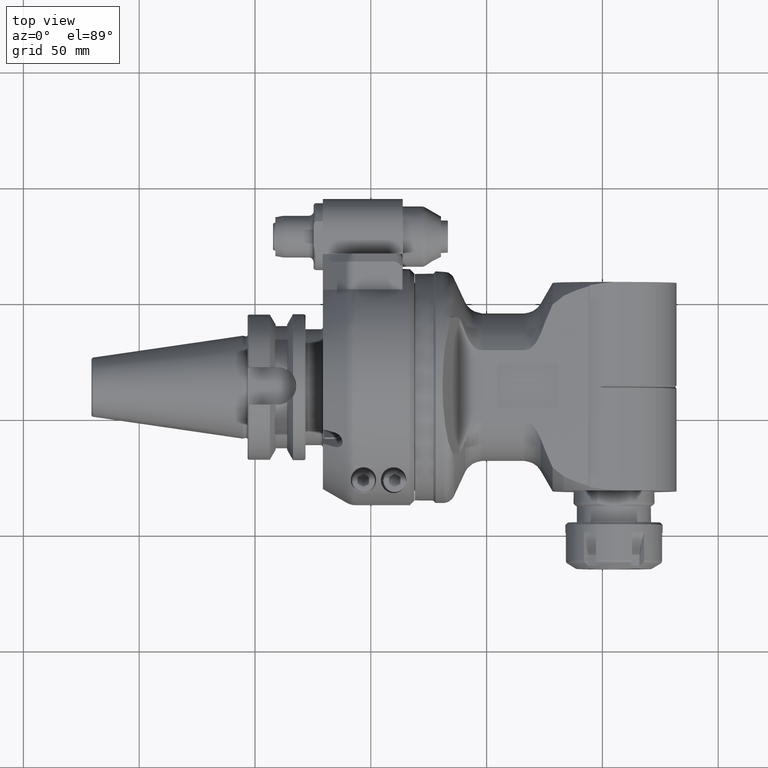
[diagram: clean part render]
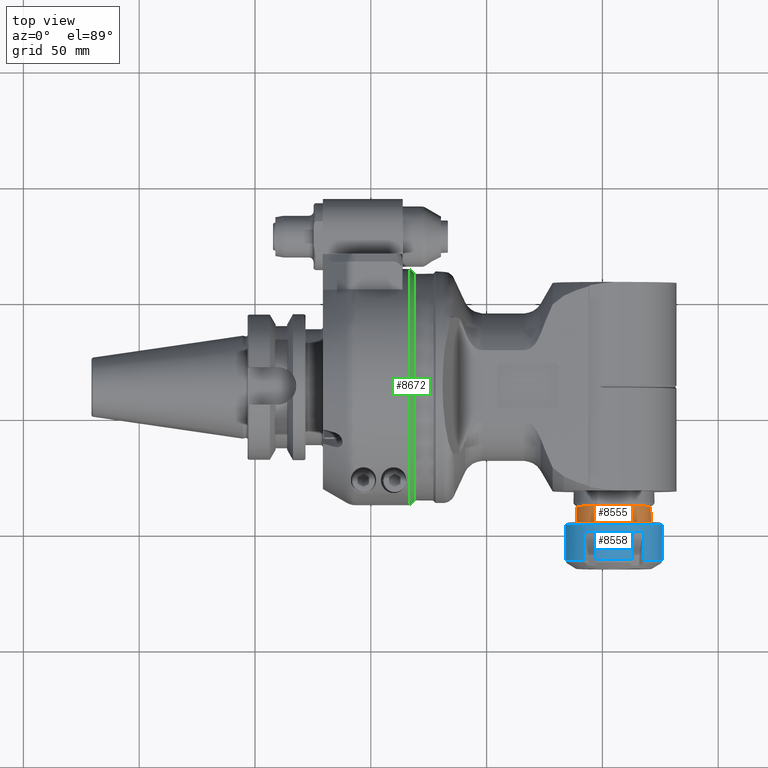
[diagram: same view with three faces highlighted in distinct colors, each labeled with its STEP entity id]
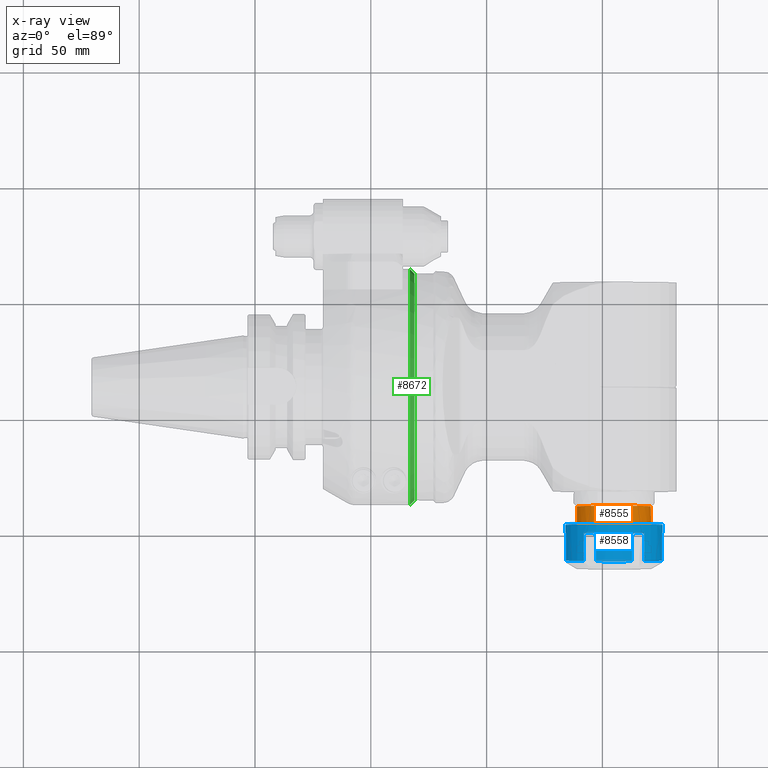
[diagram: x-ray of the same camera — body ghosted, the three highlighted faces saturated]
A machine part, top view with three faces highlighted in distinct colors.
The next image is the same camera in x-ray (body ghosted, the three faces saturated) — at least one of them is partly hidden behind the body in this view.
Their STEP definitions:

[orange] entity #8555 — the highlighted cylindrical surface (bore or boss wall) has radius 16 mm, axis along (-0, 1, 0).
#622=CYLINDRICAL_SURFACE('',#9247,16.);
#822=CIRCLE('',#9239,16.);
#823=CIRCLE('',#9240,16.);
#825=CIRCLE('',#9246,16.);
#826=CIRCLE('',#9248,16.);
#1239=FACE_OUTER_BOUND('',#1780,.T.);
#1780=EDGE_LOOP('',(#6067,#6068,#6069,#6070,#6071,#6072));
#2356=LINE('',#13516,#2917);
#2917=VECTOR('',#10480,16.);
#3574=VERTEX_POINT('',#13448);
#3577=VERTEX_POINT('',#13484);
#3578=VERTEX_POINT('',#13486);
#3580=VERTEX_POINT('',#13515);
#4519=EDGE_CURVE('',#3574,#3577,#822,.T.);
#4520=EDGE_CURVE('',#3577,#3578,#823,.T.);
#4526=EDGE_CURVE('',#3578,#3574,#825,.T.);
#4527=EDGE_CURVE('',#3577,#3580,#2356,.T.);
#4528=EDGE_CURVE('',#3580,#3580,#826,.T.);
#6067=ORIENTED_EDGE('',*,*,#4519,.F.);
#6068=ORIENTED_EDGE('',*,*,#4526,.F.);
#6069=ORIENTED_EDGE('',*,*,#4520,.F.);
#6070=ORIENTED_EDGE('',*,*,#4527,.T.);
#6071=ORIENTED_EDGE('',*,*,#4528,.F.);
#6072=ORIENTED_EDGE('',*,*,#4527,.F.);
#8555=ADVANCED_FACE('',(#1239),#622,.T.);
#9239=AXIS2_PLACEMENT_3D('',#13485,#10461,#10462);
#9240=AXIS2_PLACEMENT_3D('',#13487,#10463,#10464);
#9246=AXIS2_PLACEMENT_3D('',#13513,#10476,#10477);
#9247=AXIS2_PLACEMENT_3D('',#13514,#10478,#10479);
#9248=AXIS2_PLACEMENT_3D('',#13517,#10481,#10482);
#10461=DIRECTION('center_axis',(0.,1.,0.));
#10462=DIRECTION('ref_axis',(-1.,0.,0.));
#10463=DIRECTION('center_axis',(0.,1.,0.));
#10464=DIRECTION('ref_axis',(-1.,0.,0.));
#10476=DIRECTION('center_axis',(0.,1.,0.));
#10477=DIRECTION('ref_axis',(1.,0.,0.));
#10478=DIRECTION('center_axis',(0.,1.,0.));
#10479=DIRECTION('ref_axis',(1.,0.,0.));
#10480=DIRECTION('',(0.,-1.,0.));
#10481=DIRECTION('center_axis',(0.,-1.,0.));
#10482=DIRECTION('ref_axis',(0.,0.,1.));
#13448=CARTESIAN_POINT('',(90.,-51.50000028753,-16.));
#13484=CARTESIAN_POINT('',(74.,-51.50000028753,1.95943487863577E-15));
#13485=CARTESIAN_POINT('Origin',(90.,-51.50000028753,0.));
#13486=CARTESIAN_POINT('',(90.,-51.50000028753,16.));
#13487=CARTESIAN_POINT('Origin',(90.,-51.50000028753,0.));
#13513=CARTESIAN_POINT('Origin',(90.,-51.50000028753,0.));
#13514=CARTESIAN_POINT('Origin',(90.,-65.71442900196,0.));
#13515=CARTESIAN_POINT('',(74.,-58.50000042753,1.95943487863577E-15));
#13516=CARTESIAN_POINT('',(74.,-65.71442900196,1.95943487863577E-15));
#13517=CARTESIAN_POINT('Origin',(90.,-58.50000042753,0.));

[blue] entity #8558 — the highlighted cylindrical surface (bore or boss wall) has radius 21 mm, axis along (0, -1, -0).
#500=B_SPLINE_CURVE_WITH_KNOTS('',3,(#13528,#13529,#13530,#13531,#13532,
#13533,#13534,#13535,#13536,#13537),.UNSPECIFIED.,.F.,.F.,(4,2,2,2,4),(2.87463116985816,
2.88765206159068,3.16316369067813,3.43867531976559,3.45169621149591),
 .UNSPECIFIED.);
#501=B_SPLINE_CURVE_WITH_KNOTS('',3,(#13545,#13546,#13547,#13548,#13549,
#13550,#13551,#13552,#13553,#13554),.UNSPECIFIED.,.F.,.F.,(4,2,2,2,4),(2.87463116985781,
2.8876520615906,3.16316369067809,3.43867531976558,3.45169621149847),
 .UNSPECIFIED.);
#502=B_SPLINE_CURVE_WITH_KNOTS('',3,(#13562,#13563,#13564,#13565,#13566,
#13567,#13568,#13569,#13570,#13571),.UNSPECIFIED.,.F.,.F.,(4,2,2,2,4),(2.874631169857,
2.88765206159059,3.16316369067809,3.43867531976558,3.45169621149836),
 .UNSPECIFIED.);
#503=B_SPLINE_CURVE_WITH_KNOTS('',3,(#13579,#13580,#13581,#13582,#13583,
#13584),.UNSPECIFIED.,.F.,.F.,(4,2,4),(-3.45169621149824,-3.43867531976559,
-3.16316369067814),.UNSPECIFIED.);
#504=B_SPLINE_CURVE_WITH_KNOTS('',3,(#13587,#13588,#13589,#13590,#13591,
#13592),.UNSPECIFIED.,.F.,.F.,(4,2,4),(-3.16316369067814,-2.88765206159068,
-2.87463116985803),.UNSPECIFIED.);
#505=B_SPLINE_CURVE_WITH_KNOTS('',3,(#13600,#13601,#13602,#13603,#13604,
#13605,#13606,#13607,#13608,#13609),.UNSPECIFIED.,.F.,.F.,(4,2,2,2,4),(2.87463116985782,
2.8876520615906,3.16316369067809,3.43867531976558,3.45169621149917),
 .UNSPECIFIED.);
#506=B_SPLINE_CURVE_WITH_KNOTS('',3,(#13617,#13618,#13619,#13620,#13621,
#13622,#13623,#13624,#13625,#13626),.UNSPECIFIED.,.F.,.F.,(4,2,2,2,4),(-3.45169621149573,
-3.43867531976558,-3.16316369067809,-2.8876520615906,-2.87463116985796),
 .UNSPECIFIED.);
#623=CYLINDRICAL_SURFACE('',#9253,21.);
#828=CIRCLE('',#9252,21.);
#829=CIRCLE('',#9254,21.);
#830=CIRCLE('',#9255,21.);
#831=CIRCLE('',#9256,21.);
#832=CIRCLE('',#9257,21.);
#833=CIRCLE('',#9258,21.);
#834=CIRCLE('',#9259,21.);
#1242=FACE_OUTER_BOUND('',#1784,.T.);
#1784=EDGE_LOOP('',(#6079,#6080,#6081,#6082,#6083,#6084,#6085,#6086,#6087,
#6088,#6089,#6090,#6091,#6092,#6093,#6094,#6095,#6096,#6097,#6098,#6099,
#6100,#6101,#6102,#6103,#6104,#6105,#6106));
#2358=LINE('',#13539,#2919);
#2359=LINE('',#13543,#2920);
#2360=LINE('',#13556,#2921);
#2361=LINE('',#13560,#2922);
#2362=LINE('',#13573,#2923);
#2363=LINE('',#13577,#2924);
#2364=LINE('',#13585,#2925);
#2365=LINE('',#13594,#2926);
#2366=LINE('',#13598,#2927);
#2367=LINE('',#13611,#2928);
#2368=LINE('',#13615,#2929);
#2369=LINE('',#13628,#2930);
#2370=LINE('',#13631,#2931);
#2919=VECTOR('',#10494,11.85891834632);
#2920=VECTOR('',#10497,11.85891834642);
#2921=VECTOR('',#10498,11.85891834632);
#2922=VECTOR('',#10501,11.85891834642);
#2923=VECTOR('',#10502,11.85891834632);
#2924=VECTOR('',#10505,11.85891834642);
#2925=VECTOR('',#10506,21.);
#2926=VECTOR('',#10507,11.85891834632);
#2927=VECTOR('',#10510,11.85891834642);
#2928=VECTOR('',#10511,11.85891834632);
#2929=VECTOR('',#10514,11.85891834642);
#2930=VECTOR('',#10515,11.85891834632);
#2931=VECTOR('',#10518,11.85891834642);
#3582=VERTEX_POINT('',#13522);
#3583=VERTEX_POINT('',#13526);
#3584=VERTEX_POINT('',#13527);
#3585=VERTEX_POINT('',#13538);
#3586=VERTEX_POINT('',#13540);
#3587=VERTEX_POINT('',#13542);
#3588=VERTEX_POINT('',#13544);
#3589=VERTEX_POINT('',#13555);
#3590=VERTEX_POINT('',#13557);
#3591=VERTEX_POINT('',#13559);
#3592=VERTEX_POINT('',#13561);
#3593=VERTEX_POINT('',#13572);
#3594=VERTEX_POINT('',#13574);
#3595=VERTEX_POINT('',#13576);
#3596=VERTEX_POINT('',#13578);
#3597=VERTEX_POINT('',#13586);
#3598=VERTEX_POINT('',#13593);
#3599=VERTEX_POINT('',#13595);
#3600=VERTEX_POINT('',#13597);
#3601=VERTEX_POINT('',#13599);
#3602=VERTEX_POINT('',#13610);
#3603=VERTEX_POINT('',#13612);
#3604=VERTEX_POINT('',#13614);
#3605=VERTEX_POINT('',#13616);
#3606=VERTEX_POINT('',#13627);
#3607=VERTEX_POINT('',#13629);
#4530=EDGE_CURVE('',#3582,#3582,#828,.T.);
#4532=EDGE_CURVE('',#3583,#3584,#500,.T.);
#4533=EDGE_CURVE('',#3583,#3585,#2358,.T.);
#4534=EDGE_CURVE('',#3586,#3585,#829,.T.);
#4535=EDGE_CURVE('',#3586,#3587,#2359,.T.);
#4536=EDGE_CURVE('',#3588,#3587,#501,.T.);
#4537=EDGE_CURVE('',#3588,#3589,#2360,.T.);
#4538=EDGE_CURVE('',#3590,#3589,#830,.T.);
#4539=EDGE_CURVE('',#3590,#3591,#2361,.T.);
#4540=EDGE_CURVE('',#3592,#3591,#502,.T.);
#4541=EDGE_CURVE('',#3592,#3593,#2362,.T.);
#4542=EDGE_CURVE('',#3594,#3593,#831,.T.);
#4543=EDGE_CURVE('',#3594,#3595,#2363,.T.);
#4544=EDGE_CURVE('',#3596,#3595,#503,.F.);
#4545=EDGE_CURVE('',#3596,#3582,#2364,.T.);
#4546=EDGE_CURVE('',#3597,#3596,#504,.F.);
#4547=EDGE_CURVE('',#3597,#3598,#2365,.T.);
#4548=EDGE_CURVE('',#3599,#3598,#832,.T.);
#4549=EDGE_CURVE('',#3599,#3600,#2366,.T.);
#4550=EDGE_CURVE('',#3601,#3600,#505,.T.);
#4551=EDGE_CURVE('',#3601,#3602,#2367,.T.);
#4552=EDGE_CURVE('',#3603,#3602,#833,.T.);
#4553=EDGE_CURVE('',#3603,#3604,#2368,.T.);
#4554=EDGE_CURVE('',#3604,#3605,#506,.T.);
#4555=EDGE_CURVE('',#3605,#3606,#2369,.T.);
#4556=EDGE_CURVE('',#3607,#3606,#834,.T.);
#4557=EDGE_CURVE('',#3607,#3584,#2370,.T.);
#6079=ORIENTED_EDGE('',*,*,#4532,.F.);
#6080=ORIENTED_EDGE('',*,*,#4533,.T.);
#6081=ORIENTED_EDGE('',*,*,#4534,.F.);
#6082=ORIENTED_EDGE('',*,*,#4535,.T.);
#6083=ORIENTED_EDGE('',*,*,#4536,.F.);
#6084=ORIENTED_EDGE('',*,*,#4537,.T.);
#6085=ORIENTED_EDGE('',*,*,#4538,.F.);
#6086=ORIENTED_EDGE('',*,*,#4539,.T.);
#6087=ORIENTED_EDGE('',*,*,#4540,.F.);
#6088=ORIENTED_EDGE('',*,*,#4541,.T.);
#6089=ORIENTED_EDGE('',*,*,#4542,.F.);
#6090=ORIENTED_EDGE('',*,*,#4543,.T.);
#6091=ORIENTED_EDGE('',*,*,#4544,.F.);
#6092=ORIENTED_EDGE('',*,*,#4545,.T.);
#6093=ORIENTED_EDGE('',*,*,#4530,.F.);
#6094=ORIENTED_EDGE('',*,*,#4545,.F.);
#6095=ORIENTED_EDGE('',*,*,#4546,.F.);
#6096=ORIENTED_EDGE('',*,*,#4547,.T.);
#6097=ORIENTED_EDGE('',*,*,#4548,.F.);
#6098=ORIENTED_EDGE('',*,*,#4549,.T.);
#6099=ORIENTED_EDGE('',*,*,#4550,.F.);
#6100=ORIENTED_EDGE('',*,*,#4551,.T.);
#6101=ORIENTED_EDGE('',*,*,#4552,.F.);
#6102=ORIENTED_EDGE('',*,*,#4553,.T.);
#6103=ORIENTED_EDGE('',*,*,#4554,.T.);
#6104=ORIENTED_EDGE('',*,*,#4555,.T.);
#6105=ORIENTED_EDGE('',*,*,#4556,.F.);
#6106=ORIENTED_EDGE('',*,*,#4557,.T.);
#8558=ADVANCED_FACE('',(#1242),#623,.T.);
#9252=AXIS2_PLACEMENT_3D('',#13523,#10489,#10490);
#9253=AXIS2_PLACEMENT_3D('',#13525,#10492,#10493);
#9254=AXIS2_PLACEMENT_3D('',#13541,#10495,#10496);
#9255=AXIS2_PLACEMENT_3D('',#13558,#10499,#10500);
#9256=AXIS2_PLACEMENT_3D('',#13575,#10503,#10504);
#9257=AXIS2_PLACEMENT_3D('',#13596,#10508,#10509);
#9258=AXIS2_PLACEMENT_3D('',#13613,#10512,#10513);
#9259=AXIS2_PLACEMENT_3D('',#13630,#10516,#10517);
#10489=DIRECTION('center_axis',(0.,1.,0.));
#10490=DIRECTION('ref_axis',(1.,0.,0.));
#10492=DIRECTION('center_axis',(0.,-1.,0.));
#10493=DIRECTION('ref_axis',(-1.,0.,0.));
#10494=DIRECTION('',(1.342125547728E-13,-1.,-3.029518884242E-14));
#10495=DIRECTION('center_axis',(0.,-1.,0.));
#10496=DIRECTION('ref_axis',(-0.618448856227896,0.,0.785825051923395));
#10497=DIRECTION('',(-1.494312998217E-12,1.,1.614145636406E-12));
#10498=DIRECTION('',(3.954477060271E-14,-1.,-1.333138099864E-13));
#10499=DIRECTION('center_axis',(0.,-1.,0.));
#10500=DIRECTION('ref_axis',(0.3713200297819,0.,0.928504946396501));
#10501=DIRECTION('',(6.518895517483E-13,1.,2.10486028979E-12));
#10502=DIRECTION('',(-9.826276331582E-14,-1.,-1.006594160796E-13));
#10503=DIRECTION('center_axis',(0.,-1.,0.));
#10504=DIRECTION('ref_axis',(0.989768886009832,0.,0.142679894473105));
#10505=DIRECTION('',(2.140210918056E-12,1.,4.847230214746E-13));
#10506=DIRECTION('',(0.,1.,0.));
#10507=DIRECTION('',(-1.366092075366E-13,-1.,3.374037719038E-14));
#10508=DIRECTION('center_axis',(0.,-1.,0.));
#10509=DIRECTION('ref_axis',(0.618448856227896,0.,-0.785825051923395));
#10510=DIRECTION('',(1.497907977363E-12,1.,-1.611449402047E-12));
#10511=DIRECTION('',(-4.313974974841E-14,-1.,1.330142283909E-13));
#10512=DIRECTION('center_axis',(0.,-1.,0.));
#10513=DIRECTION('ref_axis',(-0.3713200297819,0.,-0.928504946396501));
#10514=DIRECTION('',(-6.506912253664E-13,1.,-2.101265310645E-12));
#10515=DIRECTION('',(9.346945778822E-14,-1.,1.024569056525E-13));
#10516=DIRECTION('center_axis',(0.,-1.,0.));
#10517=DIRECTION('ref_axis',(-0.989768886009832,0.,-0.142679894473105));
#10518=DIRECTION('',(-2.141409244438E-12,1.,-4.877188374293E-13));
#13522=CARTESIAN_POINT('',(111.,-59.50000042753,0.));
#13523=CARTESIAN_POINT('Origin',(90.,-59.50000042753,0.));
#13525=CARTESIAN_POINT('Origin',(90.,-68.50000042753,0.));
#13526=CARTESIAN_POINT('',(69.21485339379,-63.03264289878,2.996277783935));
#13527=CARTESIAN_POINT('',(69.21485339377,-63.03264289868,-2.996277783941));
#13528=CARTESIAN_POINT('Ctrl Pts',(69.2148533937936,-63.0326428987766,2.99627778393545));
#13529=CARTESIAN_POINT('Ctrl Pts',(69.2084119121319,-63.0201642985066,2.95159329526171));
#13530=CARTESIAN_POINT('Ctrl Pts',(69.2021025162062,-63.0079673405084,2.9068044627295));
#13531=CARTESIAN_POINT('Ctrl Pts',(69.0652865938371,-62.7439926974718,1.9122555797421));
#13532=CARTESIAN_POINT('Ctrl Pts',(69.,-62.6256583404921,0.91837209695819));
#13533=CARTESIAN_POINT('Ctrl Pts',(69.,-62.6256583404921,-0.91837209695819));
#13534=CARTESIAN_POINT('Ctrl Pts',(69.0652865938371,-62.7439926974718,-1.9122555797421));
#13535=CARTESIAN_POINT('Ctrl Pts',(69.2021025162052,-63.0079673405064,-2.90680446272191));
#13536=CARTESIAN_POINT('Ctrl Pts',(69.2084119121297,-63.0201642985025,-2.95159329524658));
#13537=CARTESIAN_POINT('Ctrl Pts',(69.2148533937903,-63.0326428987702,-2.9962777839128));
#13538=CARTESIAN_POINT('',(69.21485339379,-74.8915612451,2.996277783935));
#13539=CARTESIAN_POINT('',(69.21485339379,-63.03264289877,2.996277783936));
#13540=CARTESIAN_POINT('',(77.01257401921,-74.8915612451,16.50232609039));
#13541=CARTESIAN_POINT('Origin',(90.,-74.8915612451,0.));
#13542=CARTESIAN_POINT('',(77.01257401921,-63.03264289878,16.50232609039));
#13543=CARTESIAN_POINT('',(77.01257401921,-74.8915612451,16.50232609039));
#13544=CARTESIAN_POINT('',(82.20227937458,-63.03264289878,19.49860387433));
#13545=CARTESIAN_POINT('Ctrl Pts',(82.2022793745823,-63.0326428987759,19.4986038743274));
#13546=CARTESIAN_POINT('Ctrl Pts',(82.160360731404,-63.0201642985058,19.4818401167472));
#13547=CARTESIAN_POINT('Ctrl Pts',(82.1184177666616,-63.0079673405073,19.4649097976349));
#13548=CARTESIAN_POINT('Ctrl Pts',(81.1887052075036,-62.7439926974704,19.0861214205547));
#13549=CARTESIAN_POINT('Ctrl Pts',(80.2953335660923,-62.6256583404907,18.6457195279522));
#13550=CARTESIAN_POINT('Ctrl Pts',(78.704666433907,-62.6256583404907,17.7273474309938));
#13551=CARTESIAN_POINT('Ctrl Pts',(77.8765813863328,-62.7439926974704,17.1738658408123));
#13552=CARTESIAN_POINT('Ctrl Pts',(77.0836847495438,-63.0079673405074,16.5581053349039));
#13553=CARTESIAN_POINT('Ctrl Pts',(77.0480511807269,-63.020164298506,16.5302468214828));
#13554=CARTESIAN_POINT('Ctrl Pts',(77.0125740192101,-63.0326428987762,16.5023260903881));
#13555=CARTESIAN_POINT('',(82.20227937458,-74.8915612451,19.49860387433));
#13556=CARTESIAN_POINT('',(82.20227937458,-63.03264289877,19.49860387433));
#13557=CARTESIAN_POINT('',(97.79772062542,-74.8915612451,19.49860387433));
#13558=CARTESIAN_POINT('Origin',(90.,-74.8915612451,0.));
#13559=CARTESIAN_POINT('',(97.79772062542,-63.03264289878,19.49860387433));
#13560=CARTESIAN_POINT('',(97.79772062542,-74.8915612451,19.49860387433));
#13561=CARTESIAN_POINT('',(102.9874259808,-63.03264289878,16.50232609039));
#13562=CARTESIAN_POINT('Ctrl Pts',(102.987425980796,-63.0326428987783,16.5023260903836));
#13563=CARTESIAN_POINT('Ctrl Pts',(102.951948819277,-63.0201642985073,16.5302468214798));
#13564=CARTESIAN_POINT('Ctrl Pts',(102.916315250458,-63.007967340508,16.5581053349024));
#13565=CARTESIAN_POINT('Ctrl Pts',(102.123418613667,-62.7439926974704,17.1738658408123));
#13566=CARTESIAN_POINT('Ctrl Pts',(101.295333566093,-62.6256583404907,17.7273474309938));
#13567=CARTESIAN_POINT('Ctrl Pts',(99.7046664339077,-62.6256583404907,18.6457195279522));
#13568=CARTESIAN_POINT('Ctrl Pts',(98.8112947924964,-62.7439926974704,19.0861214205547));
#13569=CARTESIAN_POINT('Ctrl Pts',(97.8815822333384,-63.0079673405073,19.4649097976349));
#13570=CARTESIAN_POINT('Ctrl Pts',(97.839639268596,-63.0201642985058,19.4818401167472));
#13571=CARTESIAN_POINT('Ctrl Pts',(97.7977206254178,-63.0326428987759,19.4986038743274));
#13572=CARTESIAN_POINT('',(102.9874259808,-74.8915612451,16.50232609039));
#13573=CARTESIAN_POINT('',(102.9874259808,-63.03264289877,16.50232609039));
#13574=CARTESIAN_POINT('',(110.7851466062,-74.8915612451,2.996277783935));
#13575=CARTESIAN_POINT('Origin',(90.,-74.8915612451,0.));
#13576=CARTESIAN_POINT('',(110.7851466062,-63.03264289878,2.996277783935));
#13577=CARTESIAN_POINT('',(110.7851466062,-74.8915612451,2.996277783935));
#13578=CARTESIAN_POINT('',(111.,-62.6256583404921,1.70221277333915E-15));
#13579=CARTESIAN_POINT('Ctrl Pts',(110.785146606206,-63.0326428987769,2.99627778393676));
#13580=CARTESIAN_POINT('Ctrl Pts',(110.791588087868,-63.0201642985069,2.9515932952626));
#13581=CARTESIAN_POINT('Ctrl Pts',(110.797897483794,-63.0079673405085,2.90680446272993));
#13582=CARTESIAN_POINT('Ctrl Pts',(110.934713406163,-62.7439926974718,1.9122555797421));
#13583=CARTESIAN_POINT('Ctrl Pts',(111.,-62.6256583404921,0.91837209695819));
#13584=CARTESIAN_POINT('Ctrl Pts',(111.,-62.6256583404921,1.11022302462516E-15));
#13585=CARTESIAN_POINT('',(111.,-68.50000042753,2.57175827820944E-15));
#13586=CARTESIAN_POINT('',(110.7851466062,-63.03264289878,-2.996277783935));
#13587=CARTESIAN_POINT('Ctrl Pts',(111.,-62.6256583404921,-8.32667268468867E-16));
#13588=CARTESIAN_POINT('Ctrl Pts',(111.,-62.6256583404921,-0.91837209695819));
#13589=CARTESIAN_POINT('Ctrl Pts',(110.934713406163,-62.7439926974718,-1.91225557974211));
#13590=CARTESIAN_POINT('Ctrl Pts',(110.797897483794,-63.0079673405085,-2.90680446272994));
#13591=CARTESIAN_POINT('Ctrl Pts',(110.791588087868,-63.0201642985069,-2.95159329526259));
#13592=CARTESIAN_POINT('Ctrl Pts',(110.785146606206,-63.0326428987769,-2.99627778393676));
#13593=CARTESIAN_POINT('',(110.7851466062,-74.8915612451,-2.996277783935));
#13594=CARTESIAN_POINT('',(110.7851466062,-63.03264289878,-2.996277783936));
#13595=CARTESIAN_POINT('',(102.9874259808,-74.8915612451,-16.50232609039));
#13596=CARTESIAN_POINT('Origin',(90.,-74.8915612451,0.));
#13597=CARTESIAN_POINT('',(102.9874259808,-63.03264289878,-16.50232609039));
#13598=CARTESIAN_POINT('',(102.9874259808,-74.8915612451,-16.50232609039));
#13599=CARTESIAN_POINT('',(97.79772062542,-63.03264289878,-19.49860387433));
#13600=CARTESIAN_POINT('Ctrl Pts',(97.7977206254177,-63.0326428987759,-19.4986038743274));
#13601=CARTESIAN_POINT('Ctrl Pts',(97.839639268596,-63.0201642985058,-19.4818401167472));
#13602=CARTESIAN_POINT('Ctrl Pts',(97.8815822333384,-63.0079673405073,-19.4649097976349));
#13603=CARTESIAN_POINT('Ctrl Pts',(98.8112947924964,-62.7439926974704,-19.0861214205547));
#13604=CARTESIAN_POINT('Ctrl Pts',(99.7046664339077,-62.6256583404907,-18.6457195279522));
#13605=CARTESIAN_POINT('Ctrl Pts',(101.295333566093,-62.6256583404907,-17.7273474309938));
#13606=CARTESIAN_POINT('Ctrl Pts',(102.123418613667,-62.7439926974704,-17.1738658408123));
#13607=CARTESIAN_POINT('Ctrl Pts',(102.916315250458,-63.007967340508,-16.5581053349024));
#13608=CARTESIAN_POINT('Ctrl Pts',(102.951948819277,-63.0201642985073,-16.5302468214798));
#13609=CARTESIAN_POINT('Ctrl Pts',(102.987425980796,-63.0326428987783,-16.5023260903836));
#13610=CARTESIAN_POINT('',(97.79772062542,-74.8915612451,-19.49860387433));
#13611=CARTESIAN_POINT('',(97.79772062542,-63.03264289877,-19.49860387433));
#13612=CARTESIAN_POINT('',(82.20227937458,-74.8915612451,-19.49860387433));
#13613=CARTESIAN_POINT('Origin',(90.,-74.8915612451,0.));
#13614=CARTESIAN_POINT('',(82.20227937457,-63.03264289868,-19.49860387435));
#13615=CARTESIAN_POINT('',(82.20227937458,-74.8915612451,-19.49860387433));
#13616=CARTESIAN_POINT('',(77.01257401921,-63.03264289877,-16.50232609039));
#13617=CARTESIAN_POINT('Ctrl Pts',(82.2022793745568,-63.0326428987684,-19.4986038743172));
#13618=CARTESIAN_POINT('Ctrl Pts',(82.160360731387,-63.0201642985008,-19.4818401167404));
#13619=CARTESIAN_POINT('Ctrl Pts',(82.1184177666531,-63.0079673405049,-19.4649097976315));
#13620=CARTESIAN_POINT('Ctrl Pts',(81.1887052075036,-62.7439926974704,-19.0861214205547));
#13621=CARTESIAN_POINT('Ctrl Pts',(80.2953335660923,-62.6256583404907,-18.6457195279522));
#13622=CARTESIAN_POINT('Ctrl Pts',(78.704666433907,-62.6256583404907,-17.7273474309938));
#13623=CARTESIAN_POINT('Ctrl Pts',(77.8765813863328,-62.7439926974704,-17.1738658408123));
#13624=CARTESIAN_POINT('Ctrl Pts',(77.0836847495445,-63.0079673405072,-16.5581053349044));
#13625=CARTESIAN_POINT('Ctrl Pts',(77.0480511807282,-63.0201642985055,-16.5302468214839));
#13626=CARTESIAN_POINT('Ctrl Pts',(77.0125740192122,-63.0326428987755,-16.5023260903897));
#13627=CARTESIAN_POINT('',(77.01257401921,-74.8915612451,-16.50232609039));
#13628=CARTESIAN_POINT('',(77.01257401921,-63.03264289877,-16.50232609039));
#13629=CARTESIAN_POINT('',(69.21485339379,-74.8915612451,-2.996277783935));
#13630=CARTESIAN_POINT('Origin',(90.,-74.8915612451,0.));
#13631=CARTESIAN_POINT('',(69.21485339379,-74.8915612451,-2.996277783935));

[green] entity #8672 — the highlighted conical surface has half-angle 45 deg.
#120=CONICAL_SURFACE('',#9465,50.,0.785398163397448);
#361=(
BOUNDED_CURVE()
B_SPLINE_CURVE(2,(#14356,#14357,#14358),.UNSPECIFIED.,.F.,.F.)
B_SPLINE_CURVE_WITH_KNOTS((3,3),(-0.564591459525085,-0.191486343836374),
 .UNSPECIFIED.)
CURVE()
GEOMETRIC_REPRESENTATION_ITEM()
RATIONAL_B_SPLINE_CURVE((1.00850972307627,1.00599717540352,1.00308912932))
REPRESENTATION_ITEM('')
);
#362=(
BOUNDED_CURVE()
B_SPLINE_CURVE(2,(#14361,#14362,#14363),.UNSPECIFIED.,.F.,.F.)
B_SPLINE_CURVE_WITH_KNOTS((3,3),(-5.67826879781681,-5.3051636821038),
 .UNSPECIFIED.)
CURVE()
GEOMETRIC_REPRESENTATION_ITEM()
RATIONAL_B_SPLINE_CURVE((1.00308912932,1.00599717540371,1.00850972307659))
REPRESENTATION_ITEM('')
);
#909=CIRCLE('',#9460,51.);
#914=CIRCLE('',#9466,49.);
#1356=FACE_OUTER_BOUND('',#1916,.T.);
#1916=EDGE_LOOP('',(#6618,#6619,#6620,#6621));
#3754=VERTEX_POINT('',#14285);
#3755=VERTEX_POINT('',#14286);
#3761=VERTEX_POINT('',#14355);
#3762=VERTEX_POINT('',#14359);
#4790=EDGE_CURVE('',#3754,#3755,#909,.T.);
#4800=EDGE_CURVE('',#3755,#3761,#361,.T.);
#4801=EDGE_CURVE('',#3762,#3761,#914,.T.);
#4802=EDGE_CURVE('',#3762,#3754,#362,.T.);
#6618=ORIENTED_EDGE('',*,*,#4790,.T.);
#6619=ORIENTED_EDGE('',*,*,#4800,.T.);
#6620=ORIENTED_EDGE('',*,*,#4801,.F.);
#6621=ORIENTED_EDGE('',*,*,#4802,.T.);
#8672=ADVANCED_FACE('',(#1356),#120,.T.);
#9460=AXIS2_PLACEMENT_3D('',#14287,#11029,#11030);
#9465=AXIS2_PLACEMENT_3D('',#14354,#11041,#11042);
#9466=AXIS2_PLACEMENT_3D('',#14360,#11043,#11044);
#11029=DIRECTION('center_axis',(1.,0.,0.));
#11030=DIRECTION('ref_axis',(0.,1.,0.));
#11041=DIRECTION('center_axis',(-1.,0.,0.));
#11042=DIRECTION('ref_axis',(0.,1.,0.));
#11043=DIRECTION('center_axis',(1.,0.,0.));
#11044=DIRECTION('ref_axis',(0.,1.,0.));
#14285=CARTESIAN_POINT('',(-14.,-50.9779364039,-1.5));
#14286=CARTESIAN_POINT('',(-14.,-50.9779364039,1.5));
#14287=CARTESIAN_POINT('Origin',(-14.,0.,0.));
#14354=CARTESIAN_POINT('Origin',(-13.,0.,0.));
#14355=CARTESIAN_POINT('',(-12.,-48.97703543499,1.5));
#14356=CARTESIAN_POINT('Ctrl Pts',(-14.0000000000021,-50.9779364038979,
1.5));
#14357=CARTESIAN_POINT('Ctrl Pts',(-12.9799819768498,-49.9574769100383,
1.5));
#14358=CARTESIAN_POINT('Ctrl Pts',(-12.0000000000021,-48.9770354349879,
1.5));
#14359=CARTESIAN_POINT('',(-12.,-48.97703543499,-1.5));
#14360=CARTESIAN_POINT('Origin',(-12.,0.,0.));
#14361=CARTESIAN_POINT('Ctrl Pts',(-12.0000000000021,-48.9770354349879,
-1.5));
#14362=CARTESIAN_POINT('Ctrl Pts',(-12.9799819769135,-49.957476910102,-1.5));
#14363=CARTESIAN_POINT('Ctrl Pts',(-14.0000000001347,-50.9779364040305,
-1.5));